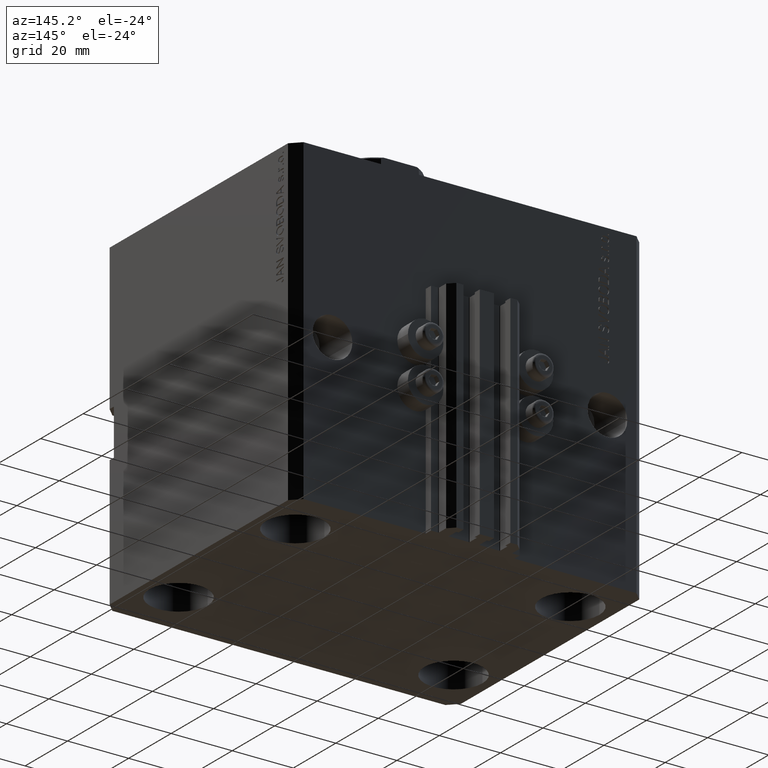
[diagram: clean part render]
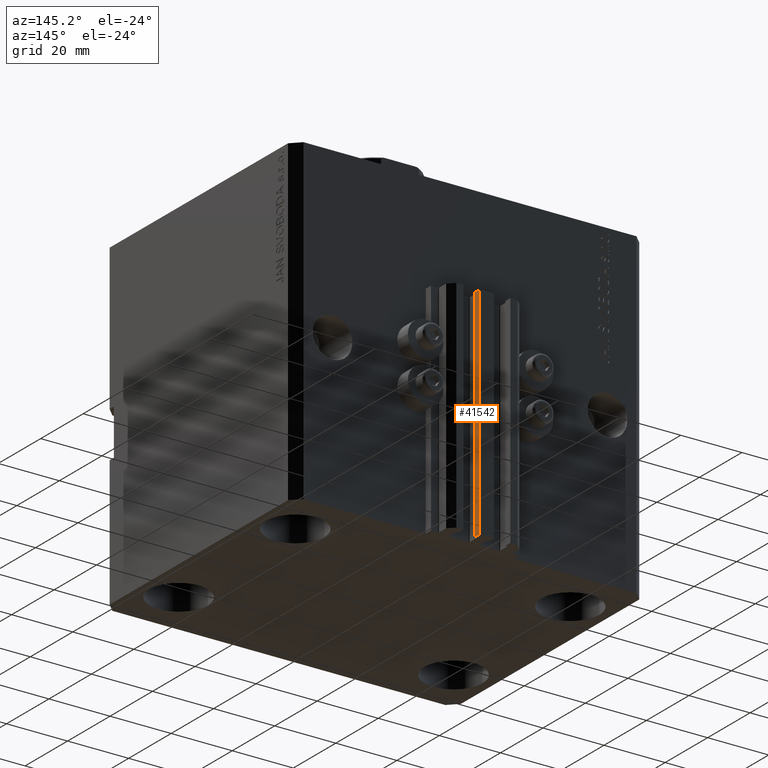
[diagram: same view with one face highlighted and labeled with its STEP entity id]
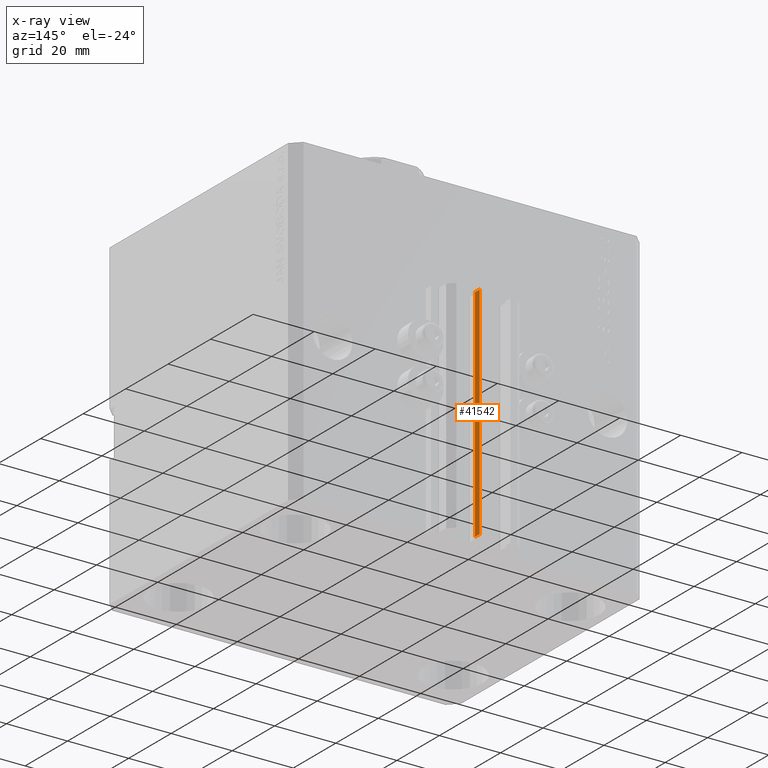
[diagram: x-ray of the same camera — body ghosted, the highlighted face saturated]
A machine part, auxiliary view. The second image highlights one B-rep face of the part: STEP entity #41542.
The next image is the same camera in x-ray: the body ghosted, the highlighted face saturated — about 0% of this face is hidden behind the body in this view.
In plain terms, the highlighted planar face has unit normal (1, 0, 0).
Its self-contained STEP definition (entity closure, byte-faithful):
#121 = EDGE_CURVE ( 'NONE', #18649, #14216, #8489, .T. ) ;
#1427 = DIRECTION ( 'NONE',  ( 0.000000000000000000, 0.000000000000000000, -1.000000000000000000 ) ) ;
#1575 = VECTOR ( 'NONE', #15865, 1000.000000000000000 ) ;
#2248 = LINE ( 'NONE', #42621, #12200 ) ;
#3770 = CARTESIAN_POINT ( 'NONE',  ( 2.349999999999999645, 53.00000000000000000, -105.0000000000000000 ) ) ;
#5276 = CARTESIAN_POINT ( 'NONE',  ( 2.349999999999999645, 50.60000000000000142, -105.0000000000000000 ) ) ;
#6072 = ORIENTED_EDGE ( 'NONE', *, *, #16084, .T. ) ;
#8489 = LINE ( 'NONE', #30881, #1575 ) ;
#8819 = DIRECTION ( 'NONE',  ( 1.000000000000000000, 0.000000000000000000, 0.000000000000000000 ) ) ;
#12200 = VECTOR ( 'NONE', #39159, 1000.000000000000000 ) ;
#14216 = VERTEX_POINT ( 'NONE', #24016 ) ;
#15496 = VECTOR ( 'NONE', #33847, 1000.000000000000000 ) ;
#15865 = DIRECTION ( 'NONE',  ( 0.000000000000000000, 1.000000000000000000, 0.000000000000000000 ) ) ;
#16037 = VERTEX_POINT ( 'NONE', #3770 ) ;
#16084 = EDGE_CURVE ( 'NONE', #20112, #16037, #2248, .T. ) ;
#18649 = VERTEX_POINT ( 'NONE', #43509 ) ;
#20112 = VERTEX_POINT ( 'NONE', #5276 ) ;
#23898 = DIRECTION ( 'NONE',  ( 0.000000000000000000, 0.000000000000000000, 1.000000000000000000 ) ) ;
#24016 = CARTESIAN_POINT ( 'NONE',  ( 2.349999999999999645, 53.00000000000000000, -33.00000000000000000 ) ) ;
#25068 = EDGE_LOOP ( 'NONE', ( #34856, #29651, #6072, #33879 ) ) ;
#27526 = FACE_OUTER_BOUND ( 'NONE', #25068, .T. ) ;
#29651 = ORIENTED_EDGE ( 'NONE', *, *, #40643, .F. ) ;
#30078 = EDGE_CURVE ( 'NONE', #16037, #14216, #33364, .T. ) ;
#30881 = CARTESIAN_POINT ( 'NONE',  ( 2.349999999999999645, 50.60000000000000142, -33.00000000000000000 ) ) ;
#33364 = LINE ( 'NONE', #41487, #15496 ) ;
#33847 = DIRECTION ( 'NONE',  ( 0.000000000000000000, 0.000000000000000000, 1.000000000000000000 ) ) ;
#33879 = ORIENTED_EDGE ( 'NONE', *, *, #30078, .T. ) ;
#34225 = LINE ( 'NONE', #46519, #44783 ) ;
#34648 = CARTESIAN_POINT ( 'NONE',  ( 2.349999999999999645, 50.60000000000000142, -105.0000000000000000 ) ) ;
#34856 = ORIENTED_EDGE ( 'NONE', *, *, #121, .F. ) ;
#34893 = PLANE ( 'NONE',  #42441 ) ;
#39159 = DIRECTION ( 'NONE',  ( 0.000000000000000000, 1.000000000000000000, 0.000000000000000000 ) ) ;
#40643 = EDGE_CURVE ( 'NONE', #20112, #18649, #34225, .T. ) ;
#41487 = CARTESIAN_POINT ( 'NONE',  ( 2.349999999999999645, 53.00000000000000000, -105.0000000000000000 ) ) ;
#41542 = ADVANCED_FACE ( 'NONE', ( #27526 ), #34893, .T. ) ;
#42441 = AXIS2_PLACEMENT_3D ( 'NONE', #34648, #8819, #1427 ) ;
#42621 = CARTESIAN_POINT ( 'NONE',  ( 2.349999999999999645, 50.60000000000000142, -105.0000000000000000 ) ) ;
#43509 = CARTESIAN_POINT ( 'NONE',  ( 2.349999999999999645, 50.60000000000000142, -33.00000000000000000 ) ) ;
#44783 = VECTOR ( 'NONE', #23898, 1000.000000000000000 ) ;
#46519 = CARTESIAN_POINT ( 'NONE',  ( 2.349999999999999645, 50.60000000000000142, -105.0000000000000000 ) ) ;